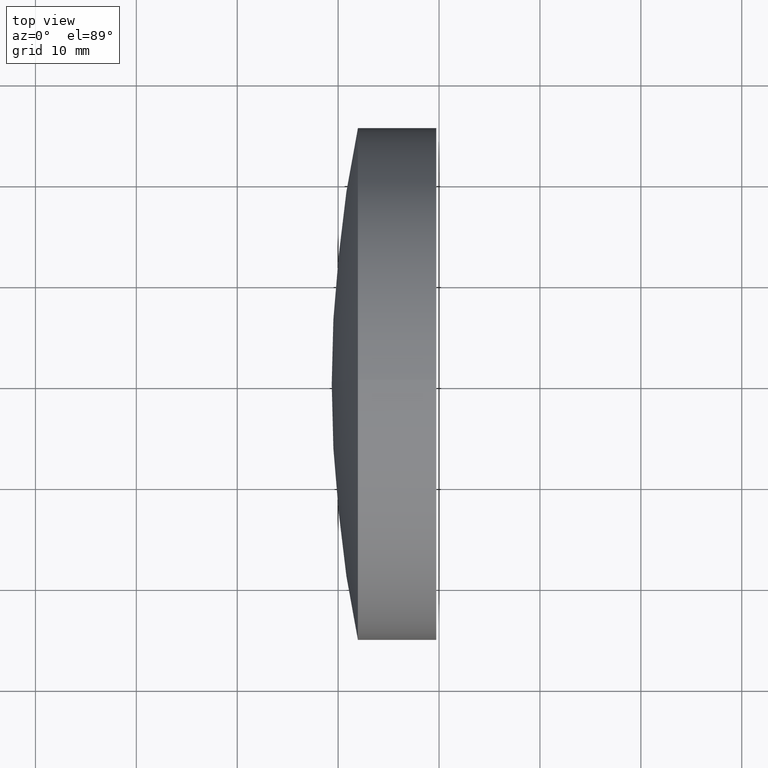
[diagram: clean part render]
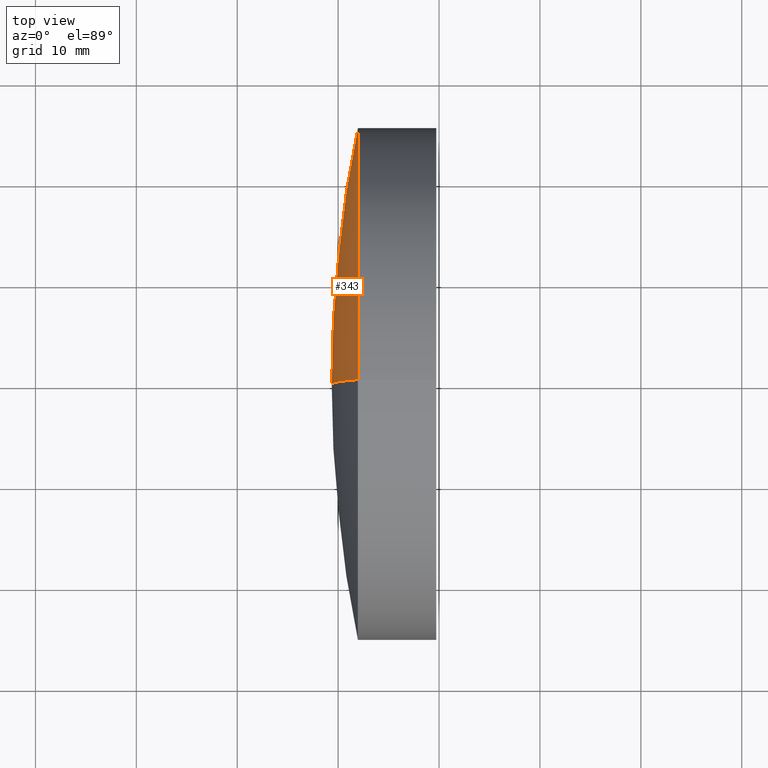
[diagram: same view with one face highlighted and labeled with its STEP entity id]
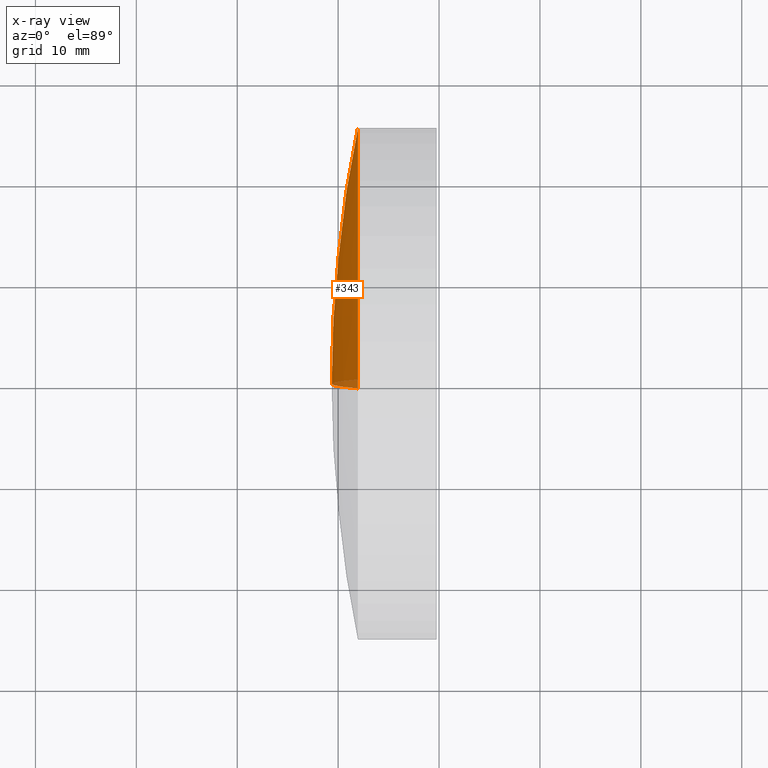
[diagram: x-ray of the same camera — body ghosted, the highlighted face saturated]
A machine part, top view. The second image highlights one B-rep face of the part: STEP entity #343.
The next image is the same camera in x-ray: the body ghosted, the highlighted face saturated — about 3% of this face is hidden behind the body in this view.
In plain terms, the highlighted spherical surface has radius 125.6 mm.
Its self-contained STEP definition (entity closure, byte-faithful):
#4 = ORIENTED_EDGE ( 'NONE', *, *, #334, .T. ) ;
#17 = AXIS2_PLACEMENT_3D ( 'NONE', #41, #253, #246 ) ;
#26 = DIRECTION ( 'NONE',  ( 0.0000000000000000000, 1.224646799147353000E-016, -1.000000000000000000 ) ) ;
#29 = DIRECTION ( 'NONE',  ( 0.0000000000000000000, -1.000000000000000000, -1.224646799147353200E-016 ) ) ;
#41 = CARTESIAN_POINT ( 'NONE',  ( 324.9647689612468200, 0.0000000000000000000, 2.974097145224427900E-014 ) ) ;
#45 = VERTEX_POINT ( 'NONE', #99 ) ;
#59 = AXIS2_PLACEMENT_3D ( 'NONE', #283, #76, #347 ) ;
#76 = DIRECTION ( 'NONE',  ( -1.000000000000000000, -0.0000000000000000000, -0.0000000000000000000 ) ) ;
#82 = CIRCLE ( 'NONE', #231, 125.6000000000000200 ) ;
#99 = CARTESIAN_POINT ( 'NONE',  ( 199.3647689612468000, 0.0000000000000000000, 2.205018955359889700E-014 ) ) ;
#138 = CARTESIAN_POINT ( 'NONE',  ( 201.9598910091916100, -3.110602869834281600E-015, 25.40000000000007000 ) ) ;
#156 = ORIENTED_EDGE ( 'NONE', *, *, #261, .F. ) ;
#163 = DIRECTION ( 'NONE',  ( 0.0000000000000000000, 0.0000000000000000000, 1.000000000000000000 ) ) ;
#188 = CARTESIAN_POINT ( 'NONE',  ( 324.9647689612468200, 0.0000000000000000000, 2.974097145224427900E-014 ) ) ;
#194 = SPHERICAL_SURFACE ( 'NONE', #17, 125.6000000000000200 ) ;
#200 = FACE_OUTER_BOUND ( 'NONE', #327, .T. ) ;
#213 = CARTESIAN_POINT ( 'NONE',  ( 201.9598910091916100, 0.0000000000000000000, -25.40000000000003800 ) ) ;
#215 = AXIS2_PLACEMENT_3D ( 'NONE', #259, #289, #163 ) ;
#223 = CIRCLE ( 'NONE', #215, 125.6000000000000200 ) ;
#231 = AXIS2_PLACEMENT_3D ( 'NONE', #188, #29, #26 ) ;
#246 = DIRECTION ( 'NONE',  ( 0.0000000000000000000, 0.0000000000000000000, -1.000000000000000000 ) ) ;
#249 = CIRCLE ( 'NONE', #59, 25.40000000000002700 ) ;
#253 = DIRECTION ( 'NONE',  ( -0.0000000000000000000, -1.000000000000000000, -0.0000000000000000000 ) ) ;
#259 = CARTESIAN_POINT ( 'NONE',  ( 324.9647689612468200, 0.0000000000000000000, 2.974097145224427900E-014 ) ) ;
#261 = EDGE_CURVE ( 'NONE', #304, #45, #82, .T. ) ;
#273 = ORIENTED_EDGE ( 'NONE', *, *, #323, .T. ) ;
#283 = CARTESIAN_POINT ( 'NONE',  ( 201.9598910091916100, 0.0000000000000000000, 0.0000000000000000000 ) ) ;
#289 = DIRECTION ( 'NONE',  ( 0.0000000000000000000, 1.000000000000000000, -0.0000000000000000000 ) ) ;
#304 = VERTEX_POINT ( 'NONE', #138 ) ;
#323 = EDGE_CURVE ( 'NONE', #328, #45, #223, .T. ) ;
#327 = EDGE_LOOP ( 'NONE', ( #156, #4, #273 ) ) ;
#328 = VERTEX_POINT ( 'NONE', #213 ) ;
#334 = EDGE_CURVE ( 'NONE', #304, #328, #249, .T. ) ;
#343 = ADVANCED_FACE ( 'NONE', ( #200 ), #194, .T. ) ;
#347 = DIRECTION ( 'NONE',  ( 0.0000000000000000000, 0.0000000000000000000, 1.000000000000000000 ) ) ;